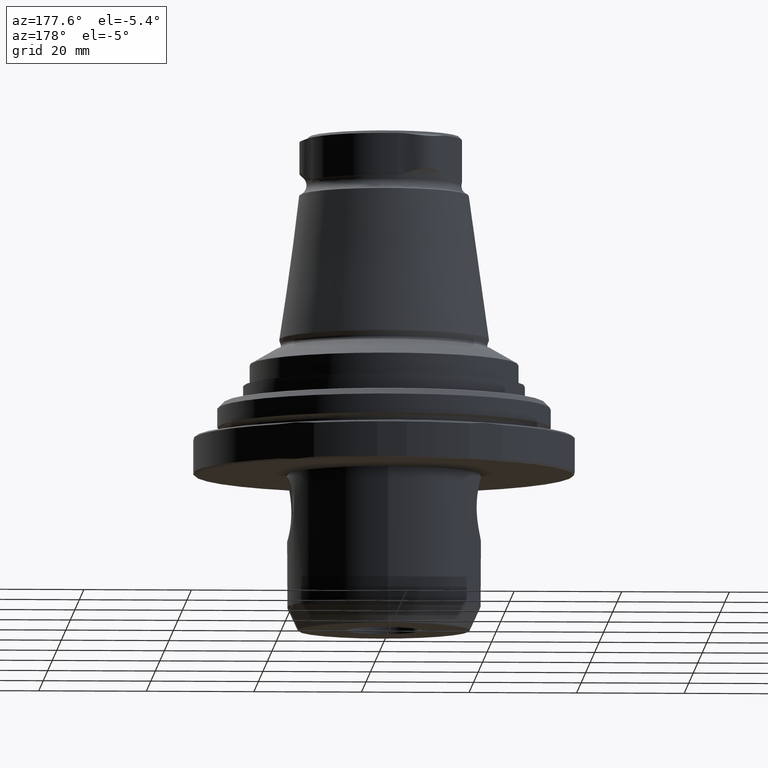
[diagram: clean part render]
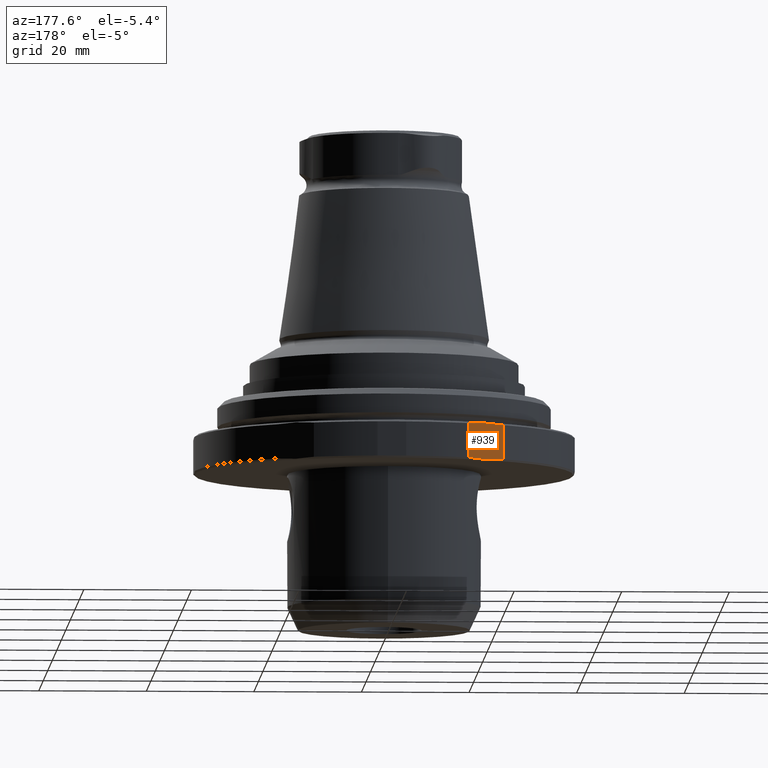
[diagram: same view with one face highlighted and labeled with its STEP entity id]
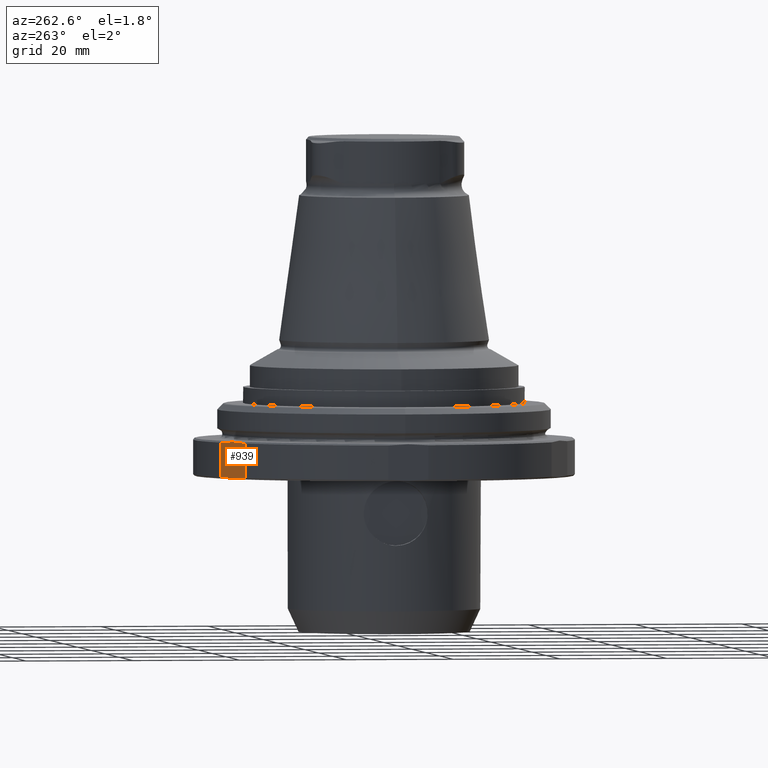
[diagram: same view with one face highlighted and labeled with its STEP entity id]
A machine part, auxiliary view. The second image highlights one B-rep face of the part: STEP entity #939.
A second angle (auxiliary view) of the same face is appended — the face is thin or edge-on in the first view.
In plain terms, the highlighted planar face has unit normal (0.5, -0.866, -0).
Its self-contained STEP definition (entity closure, byte-faithful):
#44=LINE('',#1766,#72);
#46=LINE('',#1770,#74);
#72=VECTOR('',#1286,1000.);
#74=VECTOR('',#1292,1000.);
#103=PLANE('',#1062);
#356=ORIENTED_EDGE('',*,*,#526,.F.);
#357=ORIENTED_EDGE('',*,*,#512,.F.);
#358=ORIENTED_EDGE('',*,*,#524,.F.);
#359=ORIENTED_EDGE('',*,*,#498,.F.);
#498=EDGE_CURVE('',#604,#605,#666,.T.);
#512=EDGE_CURVE('',#616,#617,#672,.T.);
#524=EDGE_CURVE('',#605,#616,#44,.T.);
#526=EDGE_CURVE('',#617,#604,#46,.F.);
#604=VERTEX_POINT('',#1682);
#605=VERTEX_POINT('',#1687);
#616=VERTEX_POINT('',#1728);
#617=VERTEX_POINT('',#1733);
#666=B_SPLINE_CURVE_WITH_KNOTS('',3,(#1683,#1684,#1685,#1686),
 .UNSPECIFIED.,.F.,.F.,(4,4),(0.00301971742095615,0.0105389064051034),
 .UNSPECIFIED.);
#672=B_SPLINE_CURVE_WITH_KNOTS('',3,(#1729,#1730,#1731,#1732),
 .UNSPECIFIED.,.F.,.F.,(4,4),(0.0142564267081391,0.0217467200872314),
 .UNSPECIFIED.);
#737=EDGE_LOOP('',(#356,#357,#358,#359));
#833=FACE_BOUND('',#737,.T.);
#939=ADVANCED_FACE('',(#833),#103,.F.);
#1062=AXIS2_PLACEMENT_3D('',#1771,#1293,#1294);
#1286=DIRECTION('',(-5.47430718319515E-16,-4.76420379815137E-18,-1.));
#1292=DIRECTION('',(-5.47430718319515E-16,-4.76420379815137E-18,-1.));
#1293=DIRECTION('',(0.500000000000001,-0.866025403784439,-2.6958941068981E-16));
#1294=DIRECTION('',(-5.47430718319515E-16,-4.76420379815137E-18,-1.));
#1682=CARTESIAN_POINT('',(-14.3911658526401,32.4521855258133,-1.29999999999998));
#1683=CARTESIAN_POINT('',(-14.3911658526401,32.4521855258133,-1.30000000000001));
#1684=CARTESIAN_POINT('',(-16.5539924560934,31.203477004099,-1.03527537313981));
#1685=CARTESIAN_POINT('',(-18.7270089611765,29.9488853399358,-1.03294999360354));
#1686=CARTESIAN_POINT('',(-20.9088341473602,28.6892079813679,-1.30000000000001));
#1687=CARTESIAN_POINT('',(-20.9088341473602,28.6892079813679,-1.29999999999998));
#1728=CARTESIAN_POINT('',(-20.9088341473602,28.6892079813679,-7.69999999999998));
#1729=CARTESIAN_POINT('',(-20.9088341473602,28.6892079813679,-7.69999999999995));
#1730=CARTESIAN_POINT('',(-18.7270089611765,29.9488853399358,-7.96705000639642));
#1731=CARTESIAN_POINT('',(-16.5539924560934,31.203477004099,-7.96472462686014));
#1732=CARTESIAN_POINT('',(-14.3911658526401,32.4521855258133,-7.69999999999995));
#1733=CARTESIAN_POINT('',(-14.3911658526401,32.4521855258133,-7.69999999999998));
#1766=CARTESIAN_POINT('',(-20.9088341473602,28.6892079813679,-0.999999999999978));
#1770=CARTESIAN_POINT('',(-14.3911658526401,32.4521855258133,-0.999999999999981));
#1771=CARTESIAN_POINT('',(-17.6500000000001,30.5706967535906,-4.49999999999998));